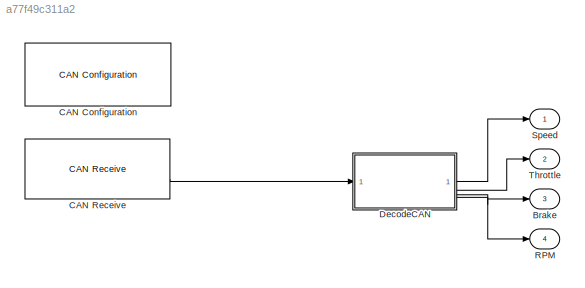
MODEL slx_a77f49c311a2
KIND model
CONFIG AbsTol = auto
CONFIG EnableMultiTasking = off
CONFIG FixedStep = auto
CONFIG MaxStep = auto
CONFIG MinStep = auto
CONFIG RelTol = 1e-3
CONFIG SampleTimeConstraint = Unconstrained
CONFIG SolverName = VariableStepAuto
CONFIG StartTime = 0.0
CONFIG StopTime = 10.0
BLOCK [Outport] Brake
  Port = 3
BLOCK [Reference] CAN Configuration  REF=canlib/CAN Configuration
  SourceBlock = canlib/CAN Configuration
  SourceType = CAN Configuration
BLOCK [Reference] CAN Receive  REF=canlib/CAN Receive
  SourceBlock = canlib/CAN Receive
  SourceType = CAN Receive
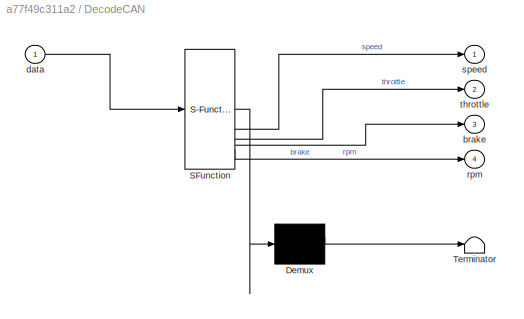
BLOCK [SubSystem] DecodeCAN
  ErrorFcn = Stateflow.Translate.translate
  PermitHierarchicalResolution = ExplicitOnly
  SFBlockType = MATLAB Function
  TreatAsAtomicUnit = on
BLOCK [Demux] DecodeCAN/ Demux 
  Outputs = 1
BLOCK [S-Function] DecodeCAN/ SFunction 
  EnableBusSupport = off
  FunctionName = sf_sfun
  PortCounts = [1 5]
  SFcnIsStateOwnerBlock = off
  SFunctionDeploymentMode = off
  Tag = Stateflow S-Function 2
BLOCK [Terminator] DecodeCAN/ Terminator 
BLOCK [Outport] DecodeCAN/brake
  Port = 3
BLOCK [Inport] DecodeCAN/data
BLOCK [Outport] DecodeCAN/rpm
  Port = 4
BLOCK [Outport] DecodeCAN/speed
BLOCK [Outport] DecodeCAN/throttle
  Port = 2
BLOCK [Outport] RPM
  Port = 4
BLOCK [Outport] Speed
BLOCK [Outport] Throttle
  Port = 2
LINE CAN Receive:2 -> DecodeCAN:1
LINE DecodeCAN:1 -> Speed:1
LINE DecodeCAN:2 -> Throttle:1
LINE DecodeCAN:3 -> Brake:1
LINE DecodeCAN:4 -> RPM:1
CHART DecodeCAN states=1 transitions=1
  STATE_LABEL 'eML_blk_kernel()'
  STATE_LABEL 'SCRIPT:\nfunction [speed, throttle, brake, rpm] = fcn(data)\n    %#codegen\n    % Assume data is a uint8 vector of length >= 6\n    % Add a check to avoid out-of-bounds error during model compilation\n    if length(data) < 6\n        speed = 0;\n        throttle = 0;\n        brake = 0;\n        rpm = 0;\n    else\n        speed = double(data(1));\n        throttle = double(data(2));\n        brake = double(da...<+73ch>'
CHART  states=0 transitions=0
